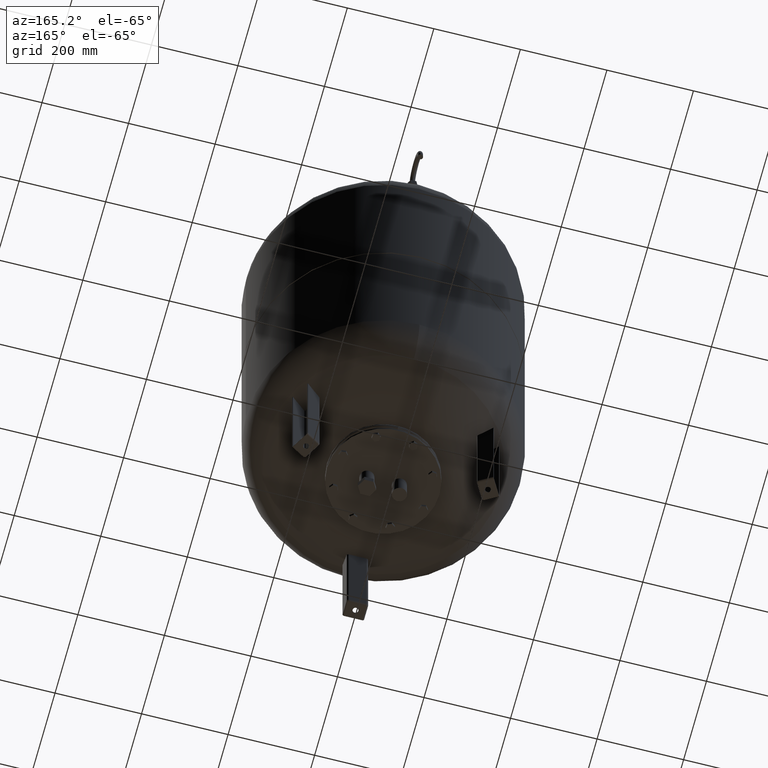
[diagram: clean part render]
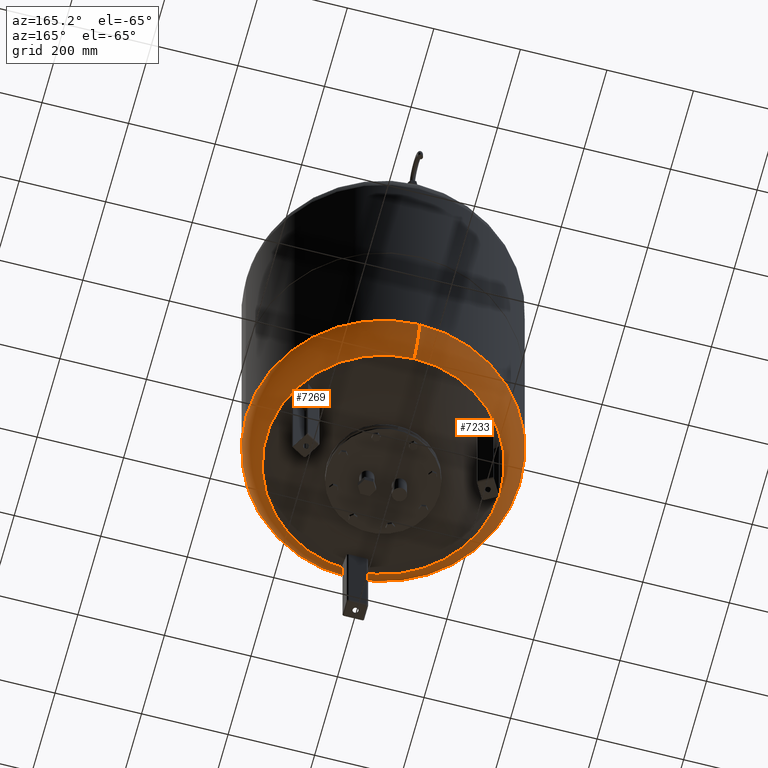
[diagram: same view with one multi-face feature highlighted, each face labeled with its STEP entity id]
A machine part, auxiliary view. The highlighted faces form ONE feature: a constant-radius fillet chain: 2 tangent blend faces with common blend radius 99 mm. The faces share edges in the B-rep.
Their STEP definitions:
[1] entity #7233 (Torus):
#7138=CARTESIAN_POINT('',(-317.000000000000060,-2.971473E-014,351.759449372628580));
#7139=VERTEX_POINT('',#7138);
#7163=CARTESIAN_POINT('',(-3.882002E-014,317.0,351.759449372628690));
#7164=VERTEX_POINT('',#7163);
#7172=CARTESIAN_POINT('',(-1.556097E-014,-2.971473E-014,351.759449372628640));
#7173=DIRECTION('',(0.0,0.0,1.0));
#7174=DIRECTION('',(-1.0,0.0,0.0));
#7175=AXIS2_PLACEMENT_3D('',#7172,#7173,#7174);
#7176=CIRCLE('',#7175,317.000000000000060);
#7177=EDGE_CURVE('',#7164,#7139,#7176,.T.);
#7182=CARTESIAN_POINT('',(0.0,-2.971473E-014,351.759449372628640));
#7183=DIRECTION('',(-9.619823E-017,-1.836970E-016,1.0));
#7184=DIRECTION('',(0.0,-1.0,0.0));
#7185=AXIS2_PLACEMENT_3D('',#7182,#7183,#7184);
#7186=TOROIDAL_SURFACE('',#7185,218.0,99.0);
#7187=CARTESIAN_POINT('',(-3.021869E-030,-317.000000000000110,351.759449372628580));
#7188=VERTEX_POINT('',#7187);
#7189=CARTESIAN_POINT('',(8.065826E-015,-270.639024390243830,267.913560318702370));
#7190=VERTEX_POINT('',#7189);
#7191=CARTESIAN_POINT('',(0.0,-218.000000000000030,351.759449372628580));
#7192=DIRECTION('',(1.0,0.0,0.0));
#7193=DIRECTION('',(0.0,-1.0,0.0));
#7194=AXIS2_PLACEMENT_3D('',#7191,#7192,#7193);
#7195=CIRCLE('',#7194,99.0);
#7196=EDGE_CURVE('',#7188,#7190,#7195,.T.);
#7197=ORIENTED_EDGE('',*,*,#7196,.F.);
#7198=CARTESIAN_POINT('',(-1.556097E-014,-2.971473E-014,351.759449372628640));
#7199=DIRECTION('',(0.0,0.0,1.0));
#7200=DIRECTION('',(-1.0,0.0,0.0));
#7201=AXIS2_PLACEMENT_3D('',#7198,#7199,#7200);
#7202=CIRCLE('',#7201,317.000000000000060);
#7203=EDGE_CURVE('',#7139,#7188,#7202,.T.);
#7204=ORIENTED_EDGE('',*,*,#7203,.F.);
#7205=ORIENTED_EDGE('',*,*,#7177,.F.);
#7206=CARTESIAN_POINT('',(-2.507680E-014,270.639024390243830,267.913560318702480));
#7207=VERTEX_POINT('',#7206);
#7208=CARTESIAN_POINT('',(-2.669642E-014,217.999999999999970,351.759449372628690));
#7209=DIRECTION('',(-1.0,0.0,0.0));
#7210=DIRECTION('',(0.0,1.0,0.0));
#7211=AXIS2_PLACEMENT_3D('',#7208,#7209,#7210);
#7212=CIRCLE('',#7211,99.0);
#7213=EDGE_CURVE('',#7164,#7207,#7212,.T.);
#7214=ORIENTED_EDGE('',*,*,#7213,.T.);
#7215=CARTESIAN_POINT('',(-270.639024390243830,-1.431249E-014,267.913560318702420));
#7216=VERTEX_POINT('',#7215);
#7217=CARTESIAN_POINT('',(-7.495146E-015,-1.431249E-014,267.913560318702420));
#7218=DIRECTION('',(0.0,0.0,1.0));
#7219=DIRECTION('',(-1.0,0.0,0.0));
#7220=AXIS2_PLACEMENT_3D('',#7217,#7218,#7219);
#7221=CIRCLE('',#7220,270.639024390243830);
#7222=EDGE_CURVE('',#7207,#7216,#7221,.T.);
#7223=ORIENTED_EDGE('',*,*,#7222,.T.);
#7224=CARTESIAN_POINT('',(-7.495146E-015,-1.431249E-014,267.913560318702420));
#7225=DIRECTION('',(0.0,0.0,1.0));
#7226=DIRECTION('',(-1.0,0.0,0.0));
#7227=AXIS2_PLACEMENT_3D('',#7224,#7225,#7226);
#7228=CIRCLE('',#7227,270.639024390243830);
#7229=EDGE_CURVE('',#7216,#7190,#7228,.T.);
#7230=ORIENTED_EDGE('',*,*,#7229,.T.);
#7231=EDGE_LOOP('',(#7197,#7204,#7205,#7214,#7223,#7230));
#7232=FACE_OUTER_BOUND('',#7231,.T.);
#7233=ADVANCED_FACE('',(#7232),#7186,.T.);
[2] entity #7269 (Torus):
#7155=CARTESIAN_POINT('',(317.0,9.105293E-015,351.759449372628640));
#7156=VERTEX_POINT('',#7155);
#7163=CARTESIAN_POINT('',(-3.882002E-014,317.0,351.759449372628690));
#7164=VERTEX_POINT('',#7163);
#7165=CARTESIAN_POINT('',(-1.556097E-014,-2.971473E-014,351.759449372628640));
#7166=DIRECTION('',(0.0,0.0,1.0));
#7167=DIRECTION('',(-1.0,0.0,0.0));
#7168=AXIS2_PLACEMENT_3D('',#7165,#7166,#7167);
#7169=CIRCLE('',#7168,317.000000000000060);
#7170=EDGE_CURVE('',#7156,#7164,#7169,.T.);
#7187=CARTESIAN_POINT('',(-3.021869E-030,-317.000000000000110,351.759449372628580));
#7188=VERTEX_POINT('',#7187);
#7189=CARTESIAN_POINT('',(8.065826E-015,-270.639024390243830,267.913560318702370));
#7190=VERTEX_POINT('',#7189);
#7191=CARTESIAN_POINT('',(0.0,-218.000000000000030,351.759449372628580));
#7192=DIRECTION('',(1.0,0.0,0.0));
#7193=DIRECTION('',(0.0,-1.0,0.0));
#7194=AXIS2_PLACEMENT_3D('',#7191,#7192,#7193);
#7195=CIRCLE('',#7194,99.0);
#7196=EDGE_CURVE('',#7188,#7190,#7195,.T.);
#7206=CARTESIAN_POINT('',(-2.507680E-014,270.639024390243830,267.913560318702480));
#7207=VERTEX_POINT('',#7206);
#7208=CARTESIAN_POINT('',(-2.669642E-014,217.999999999999970,351.759449372628690));
#7209=DIRECTION('',(-1.0,0.0,0.0));
#7210=DIRECTION('',(0.0,1.0,0.0));
#7211=AXIS2_PLACEMENT_3D('',#7208,#7209,#7210);
#7212=CIRCLE('',#7211,99.0);
#7213=EDGE_CURVE('',#7164,#7207,#7212,.T.);
#7241=CARTESIAN_POINT('',(-7.495146E-015,-1.431249E-014,267.913560318702420));
#7242=DIRECTION('',(0.0,0.0,1.0));
#7243=DIRECTION('',(-1.0,0.0,0.0));
#7244=AXIS2_PLACEMENT_3D('',#7241,#7242,#7243);
#7245=CIRCLE('',#7244,270.639024390243830);
#7246=EDGE_CURVE('',#7190,#7207,#7245,.T.);
#7251=CARTESIAN_POINT('',(0.0,-2.971473E-014,351.759449372628640));
#7252=DIRECTION('',(-9.619823E-017,-1.836970E-016,1.0));
#7253=DIRECTION('',(0.0,-1.0,0.0));
#7254=AXIS2_PLACEMENT_3D('',#7251,#7252,#7253);
#7255=TOROIDAL_SURFACE('',#7254,218.0,99.0);
#7256=ORIENTED_EDGE('',*,*,#7196,.T.);
#7257=ORIENTED_EDGE('',*,*,#7246,.T.);
#7258=ORIENTED_EDGE('',*,*,#7213,.F.);
#7259=ORIENTED_EDGE('',*,*,#7170,.F.);
#7260=CARTESIAN_POINT('',(-1.556097E-014,-2.971473E-014,351.759449372628640));
#7261=DIRECTION('',(0.0,0.0,1.0));
#7262=DIRECTION('',(-1.0,0.0,0.0));
#7263=AXIS2_PLACEMENT_3D('',#7260,#7261,#7262);
#7264=CIRCLE('',#7263,317.000000000000060);
#7265=EDGE_CURVE('',#7188,#7156,#7264,.T.);
#7266=ORIENTED_EDGE('',*,*,#7265,.F.);
#7267=EDGE_LOOP('',(#7256,#7257,#7258,#7259,#7266));
#7268=FACE_OUTER_BOUND('',#7267,.T.);
#7269=ADVANCED_FACE('',(#7268),#7255,.T.);